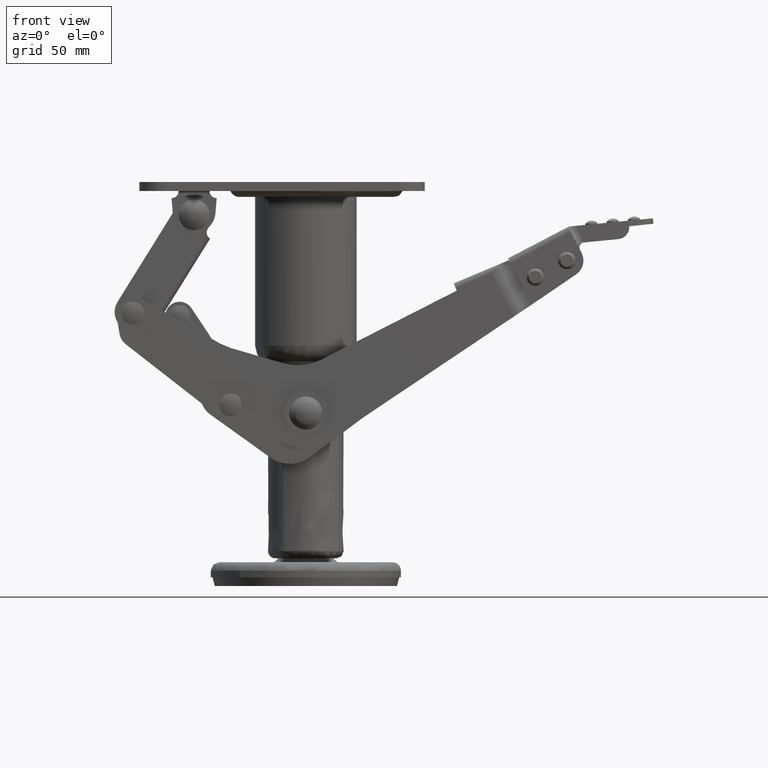
[diagram: clean part render]
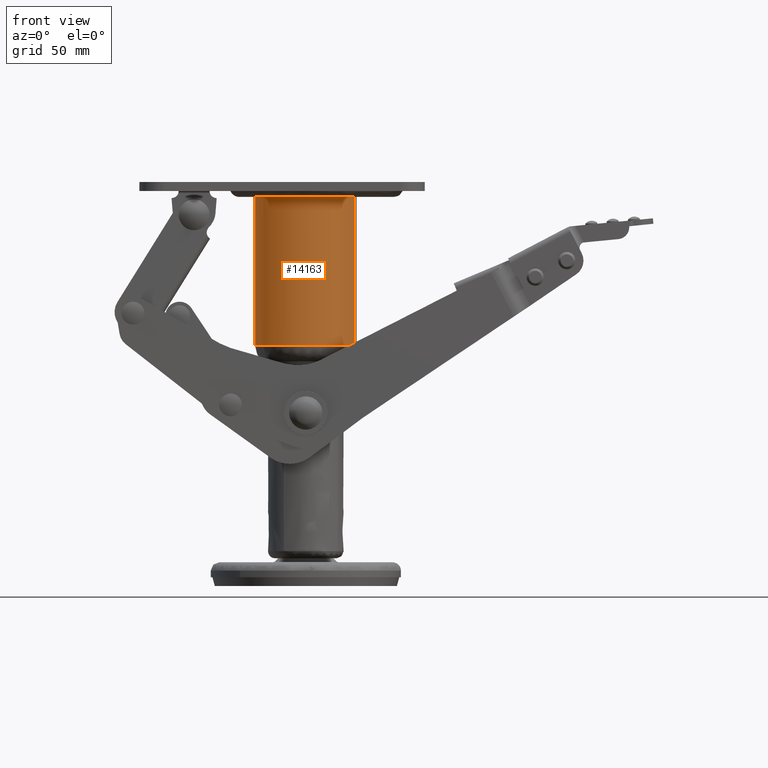
[diagram: same view with one face highlighted and labeled with its STEP entity id]
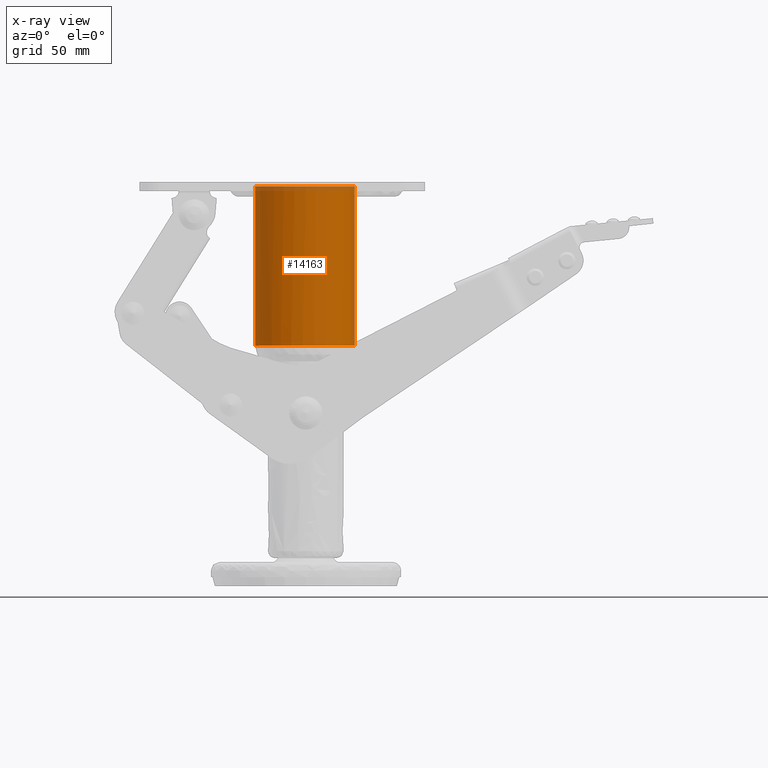
[diagram: x-ray of the same camera — body ghosted, the highlighted face saturated]
A machine part, front view. The second image highlights one B-rep face of the part: STEP entity #14163.
The next image is the same camera in x-ray: the body ghosted, the highlighted face saturated — about 3% of this face is hidden behind the body in this view.
In plain terms, the highlighted face is a freeform B-spline surface patch.
Its self-contained STEP definition (entity closure, byte-faithful):
#13998=CARTESIAN_POINT('',(20.577241104725925,-5.692091418627984,-0.375783380337220));
#13999=CARTESIAN_POINT('',(19.156067133467932,-10.829717873929297,-0.375783380337219));
#14000=CARTESIAN_POINT('',(15.486747173358630,-14.696374321189211,-0.375783380337219));
#14001=CARTESIAN_POINT('',(0.790372852169455,-30.183121494547841,-0.375783380337220));
#14002=CARTESIAN_POINT('',(-14.696374321189170,-15.486747173358660,-0.375783380337219));
#14003=CARTESIAN_POINT('',(-30.183121494547798,-0.790372852169488,-0.375783380337220));
#14004=CARTESIAN_POINT('',(-15.486747173358630,14.696374321189140,-0.375783380337219));
#14005=CARTESIAN_POINT('',(-0.790372852169455,30.183121494547770,-0.375783380337220));
#14006=CARTESIAN_POINT('',(14.696374321189170,15.486747173358591,-0.375783380337219));
#14007=CARTESIAN_POINT('',(20.577241104725925,-5.692091418627984,-70.734736821665521));
#14008=CARTESIAN_POINT('',(19.156067133467932,-10.829717873929297,-70.734736821665521));
#14009=CARTESIAN_POINT('',(15.486747173358630,-14.696374321189211,-70.734736821665521));
#14010=CARTESIAN_POINT('',(0.790372852169455,-30.183121494547841,-70.734736821665535));
#14011=CARTESIAN_POINT('',(-14.696374321189170,-15.486747173358660,-70.734736821665521));
#14012=CARTESIAN_POINT('',(-30.183121494547798,-0.790372852169488,-70.734736821665535));
#14013=CARTESIAN_POINT('',(-15.486747173358630,14.696374321189140,-70.734736821665521));
#14014=CARTESIAN_POINT('',(-0.790372852169455,30.183121494547770,-70.734736821665535));
#14015=CARTESIAN_POINT('',(14.696374321189170,15.486747173358591,-70.734736821665521));
#14023=(BOUNDED_SURFACE()B_SPLINE_SURFACE(2,1,((#13998,#14007),(#13999,#14008),(#14000,#14009),(#14001,#14010),(#14002,#14011),(#14003,#14012),(#14004,#14013),(#14005,#14014),(#14006,#14015)),.UNSPECIFIED.,.F.,.F.,.U.)B_SPLINE_SURFACE_WITH_KNOTS((3,2,2,2,3),(2,2),(0.0,11.319631413692150,46.693479581480119,82.067327749268088,117.441175917056100),(0.0,70.358953441328310),.UNSPECIFIED.)GEOMETRIC_REPRESENTATION_ITEM()RATIONAL_B_SPLINE_SURFACE(((0.872532871172385,0.872532871172385),(0.906274169979695,0.906274169979695),(1.0,1.0),(0.707106781186548,0.707106781186548),(1.0,1.0),(0.707106781186548,0.707106781186548),(1.0,1.0),(0.707106781186548,0.707106781186548),(1.0,1.0)))REPRESENTATION_ITEM('')SURFACE());
#14024=CARTESIAN_POINT('',(20.577240662993180,-5.692091174051894,-2.050000000000002));
#14025=VERTEX_POINT('',#14024);
#14026=CARTESIAN_POINT('',(-0.000003821241523,-21.350005999999791,-2.050000000000000));
#14027=VERTEX_POINT('',#14026);
#14028=CARTESIAN_POINT('',(20.577240662993180,-5.692091174051894,-2.050000000000002));
#14029=CARTESIAN_POINT('',(20.134100957173811,-7.295620193285125,-2.050000000000009));
#14030=CARTESIAN_POINT('',(19.172098448743501,-9.655932130362292,-2.049999999999995));
#14031=CARTESIAN_POINT('',(17.272044448722429,-12.655587502909739,-2.050000000000008));
#14032=CARTESIAN_POINT('',(15.224683134613411,-15.102642106055010,-2.049999999999995));
#14033=CARTESIAN_POINT('',(12.639048911429240,-17.331564967235540,-2.050000000000003));
#14034=CARTESIAN_POINT('',(9.473026412137275,-19.245488749632930,-2.050000000000007));
#14035=CARTESIAN_POINT('',(5.352039556997100,-20.872823462483321,-2.049999999999984));
#14036=CARTESIAN_POINT('',(2.025339669217833,-21.350869966772319,-2.050000000000024));
#14037=CARTESIAN_POINT('',(-0.000003821241523,-21.350005999999791,-2.050000000000000));
#14038=B_SPLINE_CURVE_WITH_KNOTS('',3,(#14028,#14029,#14030,#14031,#14032,#14033,#14034,#14035,#14036,#14037),.UNSPECIFIED.,.F.,.U.,(4,1,1,1,1,1,1,4),(0.000000127318721,4.990791000099119,7.594689617111140,10.632604997747910,14.538344583013769,17.793233305667481,21.699108555569730,27.774857573978480),.UNSPECIFIED.);
#14039=EDGE_CURVE('',#14025,#14027,#14038,.T.);
#14040=ORIENTED_EDGE('',*,*,#14039,.T.);
#14041=CARTESIAN_POINT('',(-21.350006000000100,-3.288395E-014,-2.050000000000000));
#14042=VERTEX_POINT('',#14041);
#14043=CARTESIAN_POINT('',(-0.000003821241523,-21.350005999999791,-2.050000000000000));
#14044=CARTESIAN_POINT('',(-1.222677235538201,-21.350113976718699,-2.050000000000002));
#14045=CARTESIAN_POINT('',(-3.405992331945343,-21.161899036415878,-2.049999999999999));
#14046=CARTESIAN_POINT('',(-6.977733629891625,-20.290672441690990,-2.050000000000001));
#14047=CARTESIAN_POINT('',(-10.117013543838910,-18.922157676403039,-2.050000000000006));
#14048=CARTESIAN_POINT('',(-12.893906924548221,-17.090932277194430,-2.049999999999987));
#14049=CARTESIAN_POINT('',(-15.212882072575599,-15.090694708238290,-2.050000000000024));
#14050=CARTESIAN_POINT('',(-17.102281179819350,-12.900343529968721,-2.049999999999992));
#14051=CARTESIAN_POINT('',(-18.992287741279789,-9.956012133642302,-2.049999999999995));
#14052=CARTESIAN_POINT('',(-20.431115298662490,-6.655761697211365,-2.050000000000030));
#14053=CARTESIAN_POINT('',(-21.215954887876020,-3.056705794147815,-2.049999999999949));
#14054=CARTESIAN_POINT('',(-21.350006114806920,-0.873323168020345,-2.050000000000067));
#14055=CARTESIAN_POINT('',(-21.350006000000100,-3.288395E-014,-2.050000000000000));
#14056=B_SPLINE_CURVE_WITH_KNOTS('',3,(#14043,#14044,#14045,#14046,#14047,#14048,#14049,#14050,#14051,#14052,#14053,#14054,#14055),.UNSPECIFIED.,.F.,.U.,(4,1,1,1,1,1,1,1,1,1,4),(0.000000081444334,3.668023028513712,6.550123764816199,11.004263434246980,13.886312478758679,16.506385696293400,20.174386566947440,22.532458656309981,26.986581250201880,30.916718743949740,33.536719275493958),.UNSPECIFIED.);
#14057=EDGE_CURVE('',#14027,#14042,#14056,.T.);
#14058=ORIENTED_EDGE('',*,*,#14057,.T.);
#14059=CARTESIAN_POINT('',(0.000003821242067,21.350005999999730,-2.050000000000001));
#14060=VERTEX_POINT('',#14059);
#14061=CARTESIAN_POINT('',(-21.350006000000100,-3.288395E-014,-2.050000000000000));
#14062=CARTESIAN_POINT('',(-21.350485531598739,1.834080079120476,-2.050000000000002));
#14063=CARTESIAN_POINT('',(-20.964921485973399,4.803128842115633,-2.049999999999998));
#14064=CARTESIAN_POINT('',(-19.485419319265549,9.019443097970301,-2.050000000000003));
#14065=CARTESIAN_POINT('',(-17.560484343712830,12.369436461509180,-2.049999999999999));
#14066=CARTESIAN_POINT('',(-15.212854215301260,15.090683857188459,-2.050000000000002));
#14067=CARTESIAN_POINT('',(-12.893902952082200,17.090937644270550,-2.050000000000001));
#14068=CARTESIAN_POINT('',(-10.117002281721719,18.922147604161129,-2.050000000000004));
#14069=CARTESIAN_POINT('',(-7.138734857560039,20.220484122908641,-2.049999999999991));
#14070=CARTESIAN_POINT('',(-3.580634080162914,21.134835166660860,-2.050000000000022));
#14071=CARTESIAN_POINT('',(-1.397356191557167,21.350182781417939,-2.049999999999964));
#14072=CARTESIAN_POINT('',(0.000003821242067,21.350005999999730,-2.050000000000001));
#14073=B_SPLINE_CURVE_WITH_KNOTS('',3,(#14061,#14062,#14063,#14064,#14065,#14066,#14067,#14068,#14069,#14070,#14071,#14072),.UNSPECIFIED.,.F.,.U.,(4,1,1,1,1,1,1,1,1,4),(0.000000080126277,5.502092742502299,8.908198478556408,13.362336727775940,17.030339741862662,19.650409905527130,22.532461549918860,26.986584715059308,29.344664482323740,33.536723582950962),.UNSPECIFIED.);
#14074=EDGE_CURVE('',#14042,#14060,#14073,.T.);
#14075=ORIENTED_EDGE('',*,*,#14074,.T.);
#14076=CARTESIAN_POINT('',(14.696375079696210,15.486747768746961,-2.050000000000002));
#14077=VERTEX_POINT('',#14076);
#14078=CARTESIAN_POINT('',(0.000003821242067,21.350005999999730,-2.050000000000001));
#14079=CARTESIAN_POINT('',(1.266348991581019,21.350074688681161,-2.050000000000004));
#14080=CARTESIAN_POINT('',(4.221198832993534,21.086583404915100,-2.049999999999995));
#14081=CARTESIAN_POINT('',(8.367900595069862,19.819647826844520,-2.050000000000008));
#14082=CARTESIAN_POINT('',(11.994161146885020,17.790304043693130,-2.050000000000001));
#14083=CARTESIAN_POINT('',(13.900302122944870,16.242242614721071,-2.050000000000002));
#14084=CARTESIAN_POINT('',(14.696375079696210,15.486747768746961,-2.050000000000002));
#14085=B_SPLINE_CURVE_WITH_KNOTS('',3,(#14078,#14079,#14080,#14081,#14082,#14083,#14084),.UNSPECIFIED.,.F.,.U.,(4,1,1,1,4),(0.000000034557678,3.799078466274381,8.864483387267091,12.916877990857220,16.209405371475999),.UNSPECIFIED.);
#14086=EDGE_CURVE('',#14060,#14077,#14085,.T.);
#14087=ORIENTED_EDGE('',*,*,#14086,.T.);
#14088=CARTESIAN_POINT('',(14.696374255456680,15.486747235736409,-69.018664786499286));
#14089=VERTEX_POINT('',#14088);
#14090=CARTESIAN_POINT('',(14.696375079696210,15.486747768746961,-2.050000000000002));
#14091=CARTESIAN_POINT('',(14.696374255456680,15.486747235736409,-69.018664786499286));
#14092=QUASI_UNIFORM_CURVE('',1,(#14090,#14091),.UNSPECIFIED.,.F.,.U.);
#14093=EDGE_CURVE('',#14077,#14089,#14092,.T.);
#14094=ORIENTED_EDGE('',*,*,#14093,.T.);
#14095=CARTESIAN_POINT('',(-13.096950934456700,16.860979580690820,-69.018664786508808));
#14096=VERTEX_POINT('',#14095);
#14097=CARTESIAN_POINT('',(14.696374255456680,15.486747235736409,-69.018664786499286));
#14098=CARTESIAN_POINT('',(13.379886527967709,16.736816685607590,-69.018664786499599));
#14099=CARTESIAN_POINT('',(10.939059906452510,18.521570467757300,-69.018664786499613));
#14100=CARTESIAN_POINT('',(7.541409098129247,20.042569474285731,-69.018664786501361));
#14101=CARTESIAN_POINT('',(4.661863667415024,20.895072804552751,-69.018664786500921));
#14102=CARTESIAN_POINT('',(1.144985453694469,21.464287604802649,-69.018664786503507));
#14103=CARTESIAN_POINT('',(-2.668847484189459,21.314072422416150,-69.018664786503990));
#14104=CARTESIAN_POINT('',(-6.676006390309741,20.384658490940161,-69.018664786505425));
#14105=CARTESIAN_POINT('',(-9.971750706302103,19.013657340209079,-69.018664786508296));
#14106=CARTESIAN_POINT('',(-12.161986615429541,17.587293938113842,-69.018664786507031));
#14107=CARTESIAN_POINT('',(-13.096950934456700,16.860979580690820,-69.018664786508808));
#14108=B_SPLINE_CURVE_WITH_KNOTS('',3,(#14097,#14098,#14099,#14100,#14101,#14102,#14103,#14104,#14105,#14106,#14107),.UNSPECIFIED.,.F.,.U.,(4,1,1,1,1,1,1,1,4),(0.000000134265196,5.446162775615186,8.998060840529892,11.129168111650630,14.444311447747930,19.653592809290199,22.495116672967558,26.757390009384459,30.309211628684832),.UNSPECIFIED.);
#14109=EDGE_CURVE('',#14089,#14096,#14108,.T.);
#14110=ORIENTED_EDGE('',*,*,#14109,.T.);
#14111=CARTESIAN_POINT('',(-21.350006000000100,-3.288395E-014,-69.018664786500310));
#14112=VERTEX_POINT('',#14111);
#14113=CARTESIAN_POINT('',(-13.096950934456700,16.860979580690820,-69.018664786508808));
#14114=CARTESIAN_POINT('',(-14.496442286452270,15.774617144706390,-69.018664786507159));
#14115=CARTESIAN_POINT('',(-16.372269553465390,13.899384494726160,-69.018664786505667));
#14116=CARTESIAN_POINT('',(-18.666349824953802,10.553549974477720,-69.018664786503052));
#14117=CARTESIAN_POINT('',(-20.186144544351681,7.333435463966125,-69.018664786501716));
#14118=CARTESIAN_POINT('',(-21.150854792939239,3.593773493651296,-69.018664786500196));
#14119=CARTESIAN_POINT('',(-21.350066301652880,1.164179311564753,-69.018664786500835));
#14120=CARTESIAN_POINT('',(-21.350006000000100,-3.288395E-014,-69.018664786500310));
#14121=B_SPLINE_CURVE_WITH_KNOTS('',3,(#14113,#14114,#14115,#14116,#14117,#14118,#14119,#14120),.UNSPECIFIED.,.F.,.U.,(4,1,1,1,1,4),(0.000000060691566,5.314753612687923,7.896227828261644,12.147982881287600,15.944265075069570,19.436809236039419),.UNSPECIFIED.);
#14122=EDGE_CURVE('',#14096,#14112,#14121,.T.);
#14123=ORIENTED_EDGE('',*,*,#14122,.T.);
#14124=CARTESIAN_POINT('',(-17.582425900562349,-12.111195467470390,-69.018664786511167));
#14125=VERTEX_POINT('',#14124);
#14126=CARTESIAN_POINT('',(-21.350006000000100,-3.288395E-014,-69.018664786500310));
#14127=CARTESIAN_POINT('',(-21.350967400561601,-2.079395684324209,-69.018664786500409));
#14128=CARTESIAN_POINT('',(-20.865898173679732,-5.365412894522327,-69.018664786501546));
#14129=CARTESIAN_POINT('',(-19.279662213421741,-9.370940562487133,-69.018664786506307));
#14130=CARTESIAN_POINT('',(-18.153186474585610,-11.282666806236600,-69.018664786509575));
#14131=CARTESIAN_POINT('',(-17.582425900562349,-12.111195467470390,-69.018664786511167));
#14132=B_SPLINE_CURVE_WITH_KNOTS('',3,(#14126,#14127,#14128,#14129,#14130,#14131),.UNSPECIFIED.,.F.,.U.,(4,1,1,4),(0.000000031024088,6.237844729170925,9.859772412080543,12.878067885972079),.UNSPECIFIED.);
#14133=EDGE_CURVE('',#14112,#14125,#14132,.T.);
#14134=ORIENTED_EDGE('',*,*,#14133,.T.);
#14135=CARTESIAN_POINT('',(20.577241136716928,-5.692091302978637,-69.018664786499045));
#14136=VERTEX_POINT('',#14135);
#14137=CARTESIAN_POINT('',(-17.582425900562349,-12.111195467470390,-69.018664786511167));
#14138=CARTESIAN_POINT('',(-16.759787876898141,-13.305833734806651,-69.018664786510485));
#14139=CARTESIAN_POINT('',(-15.075046892583480,-15.284884312365470,-69.018664786509476));
#14140=CARTESIAN_POINT('',(-11.741032742995129,-18.003741293111201,-69.018664786507372));
#14141=CARTESIAN_POINT('',(-8.031791886289783,-19.956937132225299,-69.018664786505681));
#14142=CARTESIAN_POINT('',(-4.004976480899618,-21.079606250772240,-69.018664786503706));
#14143=CARTESIAN_POINT('',(-0.038873587737891,-21.474400536699282,-69.018664786501830));
#14144=CARTESIAN_POINT('',(3.688781718063762,-21.149702659872482,-69.018664786502768));
#14145=CARTESIAN_POINT('',(7.103373729625034,-20.209713880479200,-69.018664786499002));
#14146=CARTESIAN_POINT('',(9.769371447789032,-19.049901085371211,-69.018664786499983));
#14147=CARTESIAN_POINT('',(12.209839863620500,-17.590838154394980,-69.018664786499414));
#14148=CARTESIAN_POINT('',(14.882326950325140,-15.466240636033231,-69.018664786499357));
#14149=CARTESIAN_POINT('',(17.103220407581350,-12.943135939693279,-69.018664786496785));
#14150=CARTESIAN_POINT('',(19.209927859212389,-9.566789455729060,-69.018664786502157));
#14151=CARTESIAN_POINT('',(20.140428289700171,-7.272514221564086,-69.018664786493048));
#14152=CARTESIAN_POINT('',(20.577241136716928,-5.692091302978637,-69.018664786499045));
#14153=B_SPLINE_CURVE_WITH_KNOTS('',3,(#14137,#14138,#14139,#14140,#14141,#14142,#14143,#14144,#14145,#14146,#14147,#14148,#14149,#14150,#14151,#14152),.UNSPECIFIED.,.F.,.U.,(4,1,1,1,1,1,1,1,1,1,1,1,1,4),(0.000000367046290,4.351416047809884,7.756859188297781,12.865125188099080,16.838225095939521,20.243732114896471,24.784238406574381,28.000454943135971,30.838381715022880,33.487110736289928,36.514232711810237,41.054868737779657,43.514452695104943,48.433383777194102),.UNSPECIFIED.);
#14154=EDGE_CURVE('',#14125,#14136,#14153,.T.);
#14155=ORIENTED_EDGE('',*,*,#14154,.T.);
#14156=CARTESIAN_POINT('',(20.577240662993180,-5.692091174051894,-2.050000000000002));
#14157=CARTESIAN_POINT('',(20.577241136716928,-5.692091302978637,-69.018664786499045));
#14158=QUASI_UNIFORM_CURVE('',1,(#14156,#14157),.UNSPECIFIED.,.F.,.U.);
#14159=EDGE_CURVE('',#14025,#14136,#14158,.T.);
#14160=ORIENTED_EDGE('',*,*,#14159,.F.);
#14161=EDGE_LOOP('',(#14040,#14058,#14075,#14087,#14094,#14110,#14123,#14134,#14155,#14160));
#14162=FACE_OUTER_BOUND('',#14161,.T.);
#14163=ADVANCED_FACE('',(#14162),#14023,.T.);